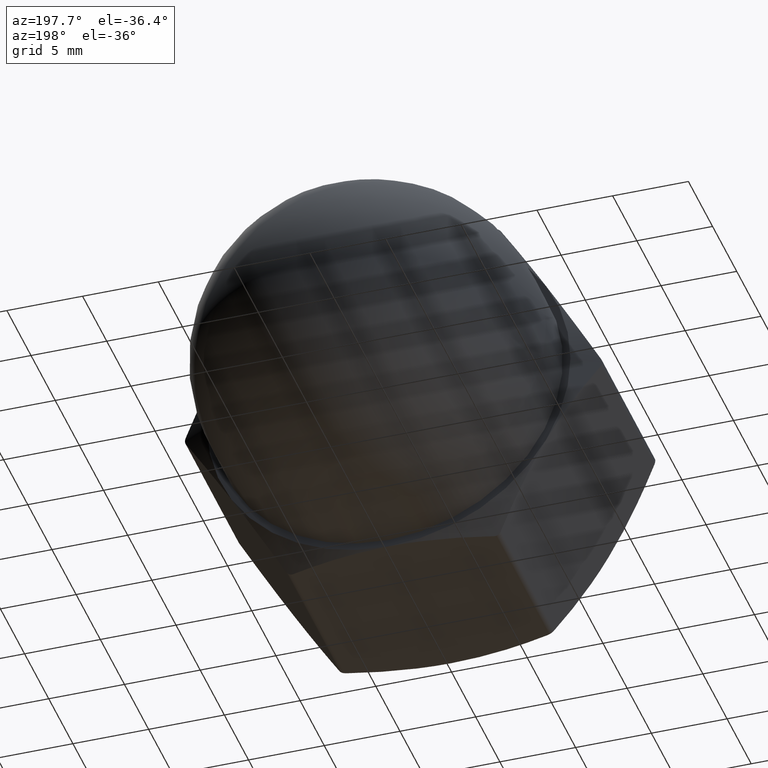
[diagram: clean part render]
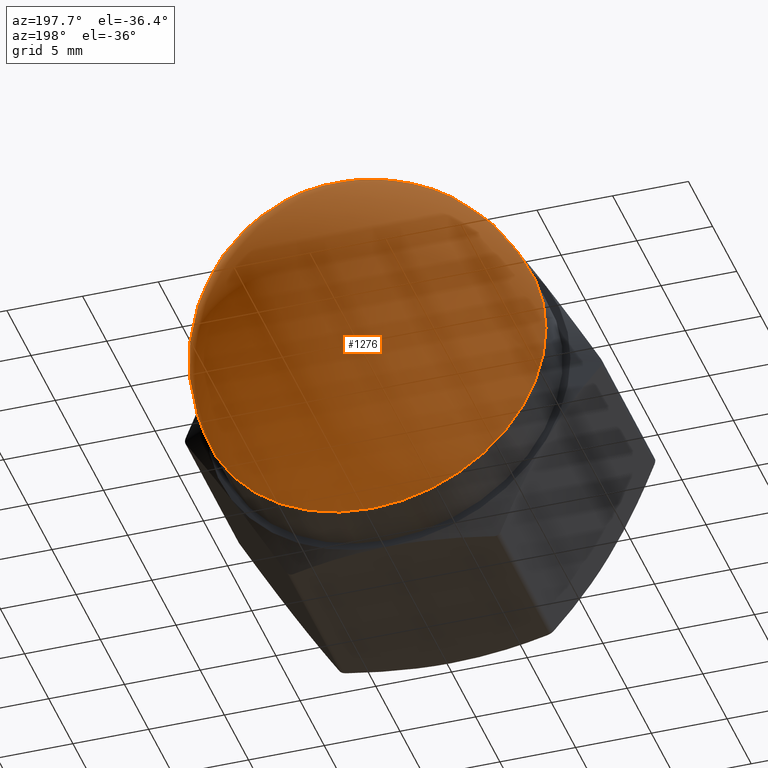
[diagram: same view with one face highlighted and labeled with its STEP entity id]
A machine part, auxiliary view. The second image highlights one B-rep face of the part: STEP entity #1276.
In plain terms, the highlighted spherical surface has radius 11.5 mm.
Its self-contained STEP definition (entity closure, byte-faithful):
#148 = CARTESIAN_POINT ( 'NONE',  ( 1.010333609296566500E-015, 16.50000000000000000, 0.0000000000000000000 ) ) ;
#223 = AXIS2_PLACEMENT_3D ( 'NONE', #148, #884, #654 ) ;
#296 = ORIENTED_EDGE ( 'NONE', *, *, #1033, .T. ) ;
#306 = DIRECTION ( 'NONE',  ( -9.850419906185231500E-017, 1.000000000000000000, -0.0000000000000000000 ) ) ;
#313 = DIRECTION ( 'NONE',  ( -1.000000000000000000, 0.0000000000000000000, 0.0000000000000000000 ) ) ;
#475 = CIRCLE ( 'NONE', #544, 11.50000000000000000 ) ;
#544 = AXIS2_PLACEMENT_3D ( 'NONE', #929, #306, #313 ) ;
#654 = DIRECTION ( 'NONE',  ( 1.000000000000000000, 0.0000000000000000000, 0.0000000000000000000 ) ) ;
#742 = SPHERICAL_SURFACE ( 'NONE', #223, 11.50000000000000000 ) ;
#884 = DIRECTION ( 'NONE',  ( 0.0000000000000000000, 0.0000000000000000000, -1.000000000000000000 ) ) ;
#929 = CARTESIAN_POINT ( 'NONE',  ( 1.010333609296566500E-015, 16.50000000000000000, 0.0000000000000000000 ) ) ;
#1024 = FACE_OUTER_BOUND ( 'NONE', #1258, .T. ) ;
#1033 = EDGE_CURVE ( 'NONE', #1270, #1270, #475, .T. ) ;
#1258 = EDGE_LOOP ( 'NONE', ( #296 ) ) ;
#1270 = VERTEX_POINT ( 'NONE', #1341 ) ;
#1276 = ADVANCED_FACE ( 'NONE', ( #1024 ), #742, .T. ) ;
#1341 = CARTESIAN_POINT ( 'NONE',  ( -11.49999999999999800, 16.50000000000000000, 0.0000000000000000000 ) ) ;